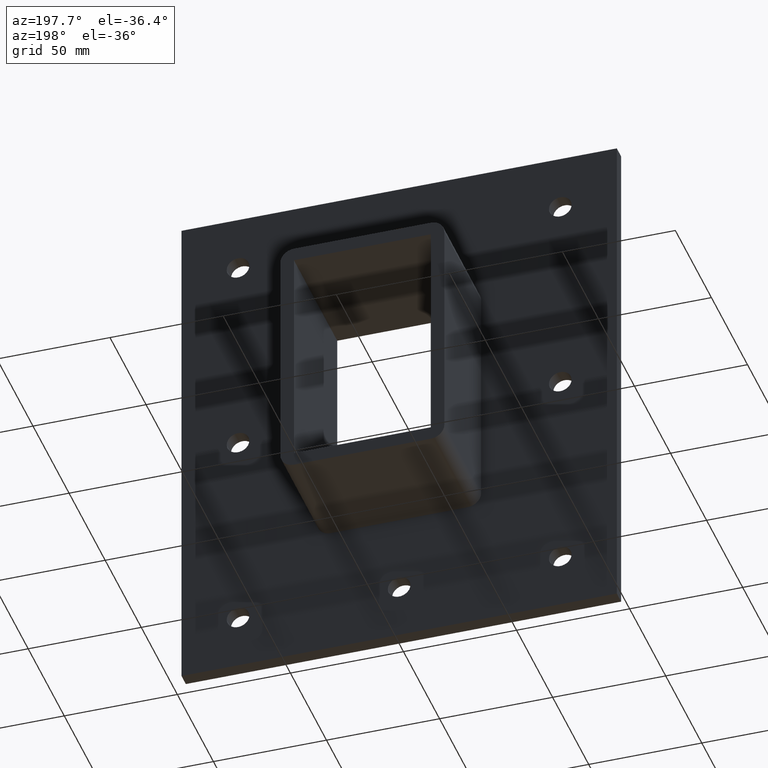
[diagram: clean part render]
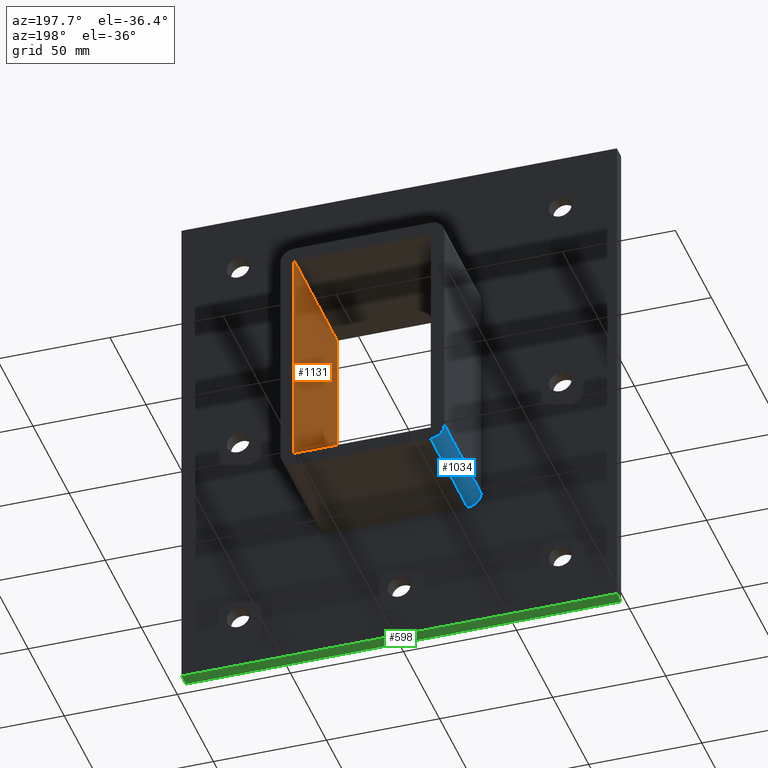
[diagram: same view with three faces highlighted in distinct colors, each labeled with its STEP entity id]
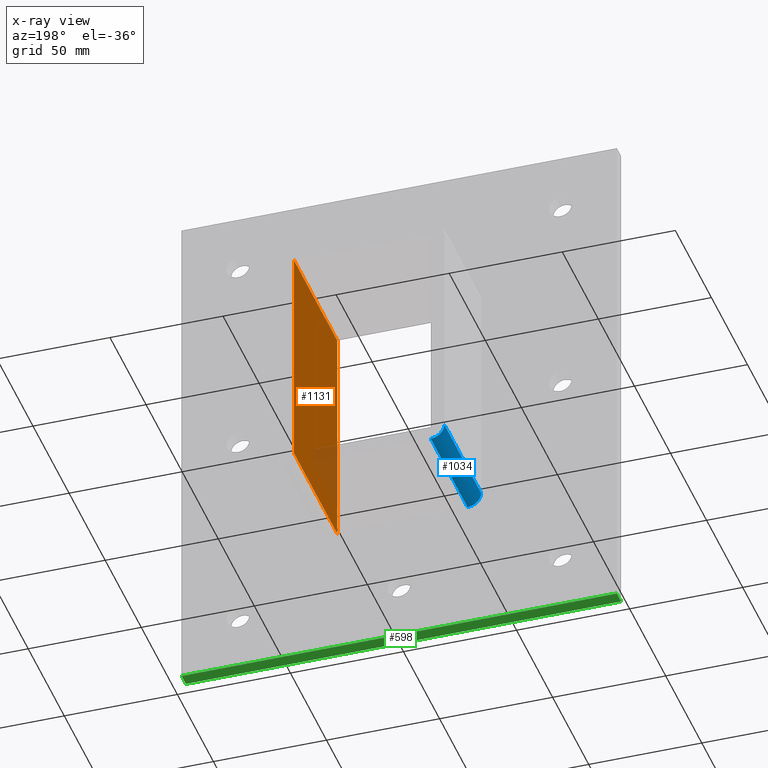
[diagram: x-ray of the same camera — body ghosted, the three highlighted faces saturated]
A machine part, auxiliary view with three faces highlighted in distinct colors.
The next image is the same camera in x-ray (body ghosted, the three faces saturated) — at least one of them is partly hidden behind the body in this view.
Their STEP definitions:

[orange] entity #1131 — the highlighted planar face has unit normal (1, 0, 0).
#984=CARTESIAN_POINT('',(30.250000000000004,-3.0,50.500000000000007));
#985=VERTEX_POINT('',#984);
#986=CARTESIAN_POINT('',(30.250000000000004,-3.0,-50.499999999999986));
#987=VERTEX_POINT('',#986);
#988=CARTESIAN_POINT('',(30.250000000000004,-3.0,50.500000000000007));
#989=DIRECTION('',(0.0,0.0,-1.0));
#990=VECTOR('',#989,101.0);
#991=LINE('',#988,#990);
#992=EDGE_CURVE('',#985,#987,#991,.T.);
#1101=CARTESIAN_POINT('',(30.250000000000004,0.0,50.500000000000007));
#1102=DIRECTION('',(1.0,0.0,0.0));
#1103=DIRECTION('',(0.0,0.0,-1.0));
#1104=AXIS2_PLACEMENT_3D('',#1101,#1102,#1103);
#1105=PLANE('',#1104);
#1106=CARTESIAN_POINT('',(30.250000000000004,57.0,-50.499999999999986));
#1107=VERTEX_POINT('',#1106);
#1108=CARTESIAN_POINT('',(30.250000000000004,56.999999999999993,-50.499999999999986));
#1109=DIRECTION('',(0.0,-1.0,0.0));
#1110=VECTOR('',#1109,59.999999999999993);
#1111=LINE('',#1108,#1110);
#1112=EDGE_CURVE('',#1107,#987,#1111,.T.);
#1113=ORIENTED_EDGE('',*,*,#1112,.T.);
#1114=ORIENTED_EDGE('',*,*,#992,.F.);
#1115=CARTESIAN_POINT('',(30.250000000000004,57.0,50.500000000000007));
#1116=VERTEX_POINT('',#1115);
#1117=CARTESIAN_POINT('',(30.250000000000004,-3.0,50.500000000000007));
#1118=DIRECTION('',(0.0,1.0,0.0));
#1119=VECTOR('',#1118,60.0);
#1120=LINE('',#1117,#1119);
#1121=EDGE_CURVE('',#985,#1116,#1120,.T.);
#1122=ORIENTED_EDGE('',*,*,#1121,.T.);
#1123=CARTESIAN_POINT('',(30.250000000000004,57.0,-50.5));
#1124=DIRECTION('',(0.0,0.0,1.0));
#1125=VECTOR('',#1124,101.0);
#1126=LINE('',#1123,#1125);
#1127=EDGE_CURVE('',#1107,#1116,#1126,.T.);
#1128=ORIENTED_EDGE('',*,*,#1127,.F.);
#1129=EDGE_LOOP('',(#1113,#1114,#1122,#1128));
#1130=FACE_OUTER_BOUND('',#1129,.T.);
#1131=ADVANCED_FACE('',(#1130),#1105,.F.);

[blue] entity #1034 — the highlighted cylindrical surface (edge-blend (fillet) strip) has radius 6 mm, axis along (0, 1, 0).
#355=CARTESIAN_POINT('',(-30.250000000000004,6.000000000000001,-56.5));
#356=VERTEX_POINT('',#355);
#357=CARTESIAN_POINT('',(-36.250000000000007,6.000000000000001,-50.500000000000007));
#358=VERTEX_POINT('',#357);
#359=CARTESIAN_POINT('',(-30.250000000000004,6.000000000000001,-50.500000000000007));
#360=DIRECTION('',(0.0,1.0,0.0));
#361=DIRECTION('',(-0.707106781186547,0.0,-0.707106781186547));
#362=AXIS2_PLACEMENT_3D('',#359,#360,#361);
#363=CIRCLE('',#362,6.0);
#364=EDGE_CURVE('',#356,#358,#363,.T.);
#909=CARTESIAN_POINT('',(-30.25,57.0,-56.5));
#910=VERTEX_POINT('',#909);
#911=CARTESIAN_POINT('',(-30.250000000000004,57.0,-56.5));
#912=DIRECTION('',(0.0,-1.0,0.0));
#913=VECTOR('',#912,51.0);
#914=LINE('',#911,#913);
#915=EDGE_CURVE('',#910,#356,#914,.T.);
#1010=CARTESIAN_POINT('',(-30.250000000000004,0.0,-50.500000000000007));
#1011=DIRECTION('',(0.0,1.0,0.0));
#1012=DIRECTION('',(-0.707106781186547,0.0,-0.707106781186547));
#1013=AXIS2_PLACEMENT_3D('',#1010,#1011,#1012);
#1014=CYLINDRICAL_SURFACE('',#1013,6.000000000000001);
#1015=ORIENTED_EDGE('',*,*,#364,.T.);
#1016=CARTESIAN_POINT('',(-36.250000000000007,57.0,-50.500000000000007));
#1017=VERTEX_POINT('',#1016);
#1018=CARTESIAN_POINT('',(-36.250000000000007,6.000000000000001,-50.500000000000007));
#1019=DIRECTION('',(0.0,1.0,0.0));
#1020=VECTOR('',#1019,51.0);
#1021=LINE('',#1018,#1020);
#1022=EDGE_CURVE('',#358,#1017,#1021,.T.);
#1023=ORIENTED_EDGE('',*,*,#1022,.T.);
#1024=CARTESIAN_POINT('',(-30.250000000000004,57.0,-50.500000000000007));
#1025=DIRECTION('',(0.0,-1.0,0.0));
#1026=DIRECTION('',(-0.707106781186547,0.0,-0.707106781186547));
#1027=AXIS2_PLACEMENT_3D('',#1024,#1025,#1026);
#1028=CIRCLE('',#1027,6.0);
#1029=EDGE_CURVE('',#1017,#910,#1028,.T.);
#1030=ORIENTED_EDGE('',*,*,#1029,.T.);
#1031=ORIENTED_EDGE('',*,*,#915,.T.);
#1032=EDGE_LOOP('',(#1015,#1023,#1030,#1031));
#1033=FACE_OUTER_BOUND('',#1032,.T.);
#1034=ADVANCED_FACE('',(#1033),#1014,.T.);

[green] entity #598 — the highlighted planar face has unit normal (0, 0, -1).
#307=CARTESIAN_POINT('',(96.25,6.000000000000001,-116.5));
#308=VERTEX_POINT('',#307);
#315=CARTESIAN_POINT('',(-96.25,6.000000000000001,-116.5));
#316=VERTEX_POINT('',#315);
#317=CARTESIAN_POINT('',(96.25,6.000000000000001,-116.5));
#318=DIRECTION('',(-1.0,0.0,0.0));
#319=VECTOR('',#318,192.5);
#320=LINE('',#317,#319);
#321=EDGE_CURVE('',#308,#316,#320,.T.);
#441=CARTESIAN_POINT('',(-96.25,0.0,-116.5));
#442=VERTEX_POINT('',#441);
#449=CARTESIAN_POINT('',(96.25,0.0,-116.5));
#450=VERTEX_POINT('',#449);
#451=CARTESIAN_POINT('',(96.25,0.0,-116.5));
#452=DIRECTION('',(-1.0,0.0,0.0));
#453=VECTOR('',#452,192.5);
#454=LINE('',#451,#453);
#455=EDGE_CURVE('',#450,#442,#454,.T.);
#573=CARTESIAN_POINT('',(-96.25,0.0,-116.5));
#574=DIRECTION('',(0.0,1.0,0.0));
#575=VECTOR('',#574,6.000000000000001);
#576=LINE('',#573,#575);
#577=EDGE_CURVE('',#442,#316,#576,.T.);
#582=CARTESIAN_POINT('',(96.25,0.0,-116.5));
#583=DIRECTION('',(0.0,0.0,-1.0));
#584=DIRECTION('',(-1.0,0.0,0.0));
#585=AXIS2_PLACEMENT_3D('',#582,#583,#584);
#586=PLANE('',#585);
#587=ORIENTED_EDGE('',*,*,#455,.T.);
#588=ORIENTED_EDGE('',*,*,#577,.T.);
#589=ORIENTED_EDGE('',*,*,#321,.F.);
#590=CARTESIAN_POINT('',(96.25,0.0,-116.5));
#591=DIRECTION('',(0.0,1.0,0.0));
#592=VECTOR('',#591,6.000000000000001);
#593=LINE('',#590,#592);
#594=EDGE_CURVE('',#450,#308,#593,.T.);
#595=ORIENTED_EDGE('',*,*,#594,.F.);
#596=EDGE_LOOP('',(#587,#588,#589,#595));
#597=FACE_OUTER_BOUND('',#596,.T.);
#598=ADVANCED_FACE('',(#597),#586,.T.);